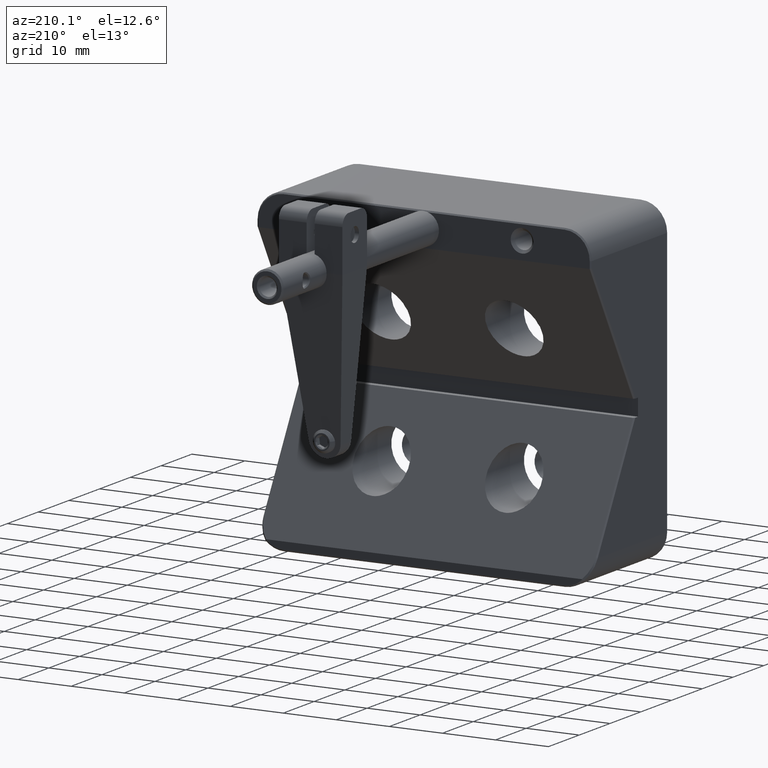
[diagram: clean part render]
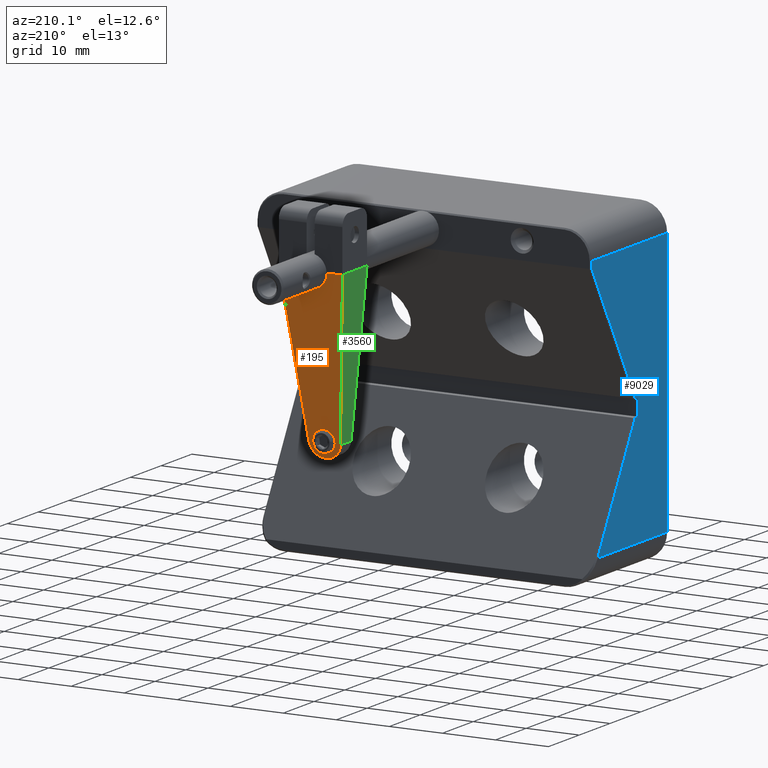
[diagram: same view with three faces highlighted in distinct colors, each labeled with its STEP entity id]
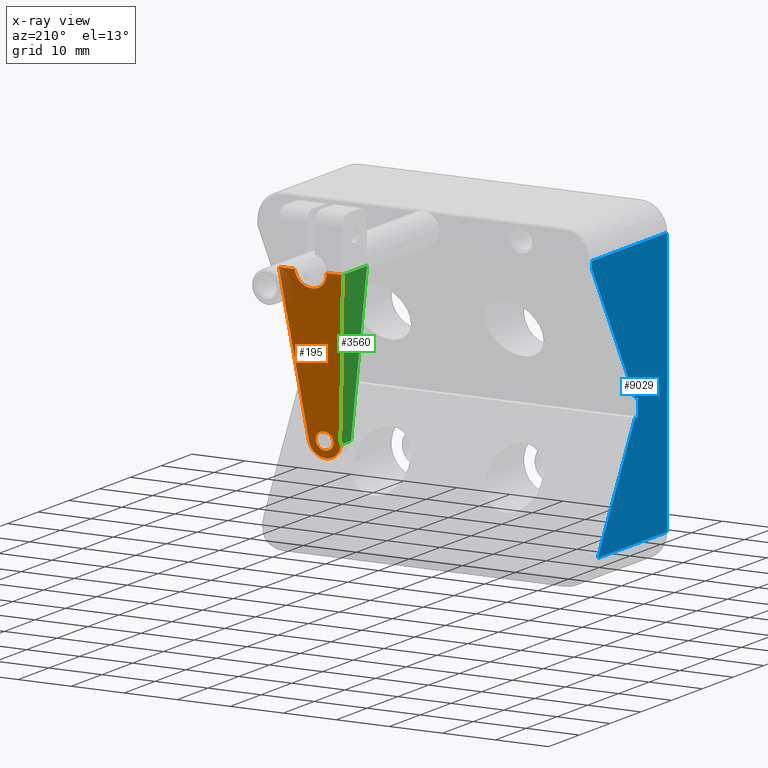
[diagram: x-ray of the same camera — body ghosted, the three highlighted faces saturated]
A machine part, auxiliary view with three faces highlighted in distinct colors.
The next image is the same camera in x-ray (body ghosted, the three faces saturated) — at least one of them is partly hidden behind the body in this view.
Their STEP definitions:

[orange] entity #195 — the highlighted planar face has unit normal (0, -0.9882, 0.153).
#61 = EDGE_CURVE ( 'NONE', #6894, #7916, #4898, .T. ) ;
#77 = VECTOR ( 'NONE', #3393, 1000.000000000000000 ) ;
#195 = ADVANCED_FACE ( 'NONE', ( #1116, #9413 ), #4980, .F. ) ;
#205 = LINE ( 'NONE', #8224, #2160 ) ;
#208 = CARTESIAN_POINT ( 'NONE',  ( 2.984557093065569155, 44.78779720589584201, -2.604004865474175201 ) ) ;
#356 = ORIENTED_EDGE ( 'NONE', *, *, #9416, .F. ) ;
#382 = CARTESIAN_POINT ( 'NONE',  ( -3.000000000000004885, 49.37046049776490264, 27.00000000000001421 ) ) ;
#540 = DIRECTION ( 'NONE',  ( 1.979147625507997711E-17, -0.9882297884318828052, 0.1529767474352757284 ) ) ;
#940 = EDGE_CURVE ( 'NONE', #8459, #6750, #7723, .T. ) ;
#1055 = EDGE_CURVE ( 'NONE', #4354, #3253, #8674, .T. ) ;
#1116 = FACE_BOUND ( 'NONE', #5462, .T. ) ;
#1137 = CARTESIAN_POINT ( 'NONE',  ( -1.649999999999991029, 45.34569269590732432, 0.9999999999999792388 ) ) ;
#1153 = ORIENTED_EDGE ( 'NONE', *, *, #940, .F. ) ;
#1267 = ORIENTED_EDGE ( 'NONE', *, *, #5946, .F. ) ;
#1363 = CARTESIAN_POINT ( 'NONE',  ( 2.999999999999998224, 48.44166792810546696, 21.00000000000001066 ) ) ;
#1563 = CARTESIAN_POINT ( 'NONE',  ( -1.649999999999994360, 44.83485678259463469, -2.299999999999995381 ) ) ;
#1615 = DIRECTION ( 'NONE',  ( 0.1001542559867145826, -0.1522075683738867702, -0.9832608916953100575 ) ) ;
#1962 = ORIENTED_EDGE ( 'NONE', *, *, #1055, .F. ) ;
#2148 = CARTESIAN_POINT ( 'NONE',  ( 2.984557093065569155, 44.78779720589584201, -2.604004865474175201 ) ) ;
#2160 = VECTOR ( 'NONE', #1615, 1000.000000000000114 ) ;
#2474 = ORIENTED_EDGE ( 'NONE', *, *, #7327, .F. ) ;
#2535 = CARTESIAN_POINT ( 'NONE',  ( 6.000000000000000000, 49.37046049776490264, 27.00000000000001421 ) ) ;
#2618 = EDGE_CURVE ( 'NONE', #7916, #6894, #3755, .T. ) ;
#2987 = CARTESIAN_POINT ( 'NONE',  ( 1.649999999999986589, 44.83485678259463469, -2.299999999999995826 ) ) ;
#3253 = VERTEX_POINT ( 'NONE', #2535 ) ;
#3359 = DIRECTION ( 'NONE',  ( -1.000000000000000000, -1.787893627723958978E-17, 1.387778780781445367E-17 ) ) ;
#3393 = DIRECTION ( 'NONE',  ( -1.000000000000000000, -1.787893627723958978E-17, 1.387778780781445367E-17 ) ) ;
#3521 = CARTESIAN_POINT ( 'NONE',  ( 3.054416292723169501, 44.89396442568767753, -1.918164625618924646 ) ) ;
#3551 =( BOUNDED_CURVE ( )  B_SPLINE_CURVE ( 3, ( #9095, #5366, #4630, #208 ),
 .UNSPECIFIED., .F., .F. ) 
 B_SPLINE_CURVE_WITH_KNOTS ( ( 4, 4 ),
 ( 4.813898172835371803, 7.752472441523800661 ),
 .UNSPECIFIED. ) 
 CURVE ( )  GEOMETRIC_REPRESENTATION_ITEM ( )  RATIONAL_B_SPLINE_CURVE ( ( 1.000000000000000000, 0.4008899701053729725, 0.4008899701053729725, 1.000000000000000000 ) ) 
 REPRESENTATION_ITEM ( '' )  );
#3692 = ORIENTED_EDGE ( 'NONE', *, *, #2618, .F. ) ;
#3755 =( BOUNDED_CURVE ( )  B_SPLINE_CURVE ( 3, ( #5292, #8918, #6047, #4468 ),
 .UNSPECIFIED., .F., .F. ) 
 B_SPLINE_CURVE_WITH_KNOTS ( ( 4, 4 ),
 ( 4.712388980384688786, 7.853981633974483678 ),
 .UNSPECIFIED. ) 
 CURVE ( )  GEOMETRIC_REPRESENTATION_ITEM ( )  RATIONAL_B_SPLINE_CURVE ( ( 1.000000000000000000, 0.3333333333333327597, 0.3333333333333327597, 1.000000000000000000 ) ) 
 REPRESENTATION_ITEM ( '' )  );
#3988 =( BOUNDED_CURVE ( )  B_SPLINE_CURVE ( 3, ( #8035, #1363, #4416, #7234 ),
 .UNSPECIFIED., .F., .T. ) 
 B_SPLINE_CURVE_WITH_KNOTS ( ( 4, 4 ),
 ( 1.570796326794896558, 4.712388980384689674 ),
 .UNSPECIFIED. ) 
 CURVE ( )  GEOMETRIC_REPRESENTATION_ITEM ( )  RATIONAL_B_SPLINE_CURVE ( ( 1.000000000000000000, 0.3333333333333333703, 0.3333333333333333703, 1.000000000000000000 ) ) 
 REPRESENTATION_ITEM ( '' )  );
#4354 = VERTEX_POINT ( 'NONE', #2148 ) ;
#4416 = CARTESIAN_POINT ( 'NONE',  ( -3.000000000000004441, 48.44166792810546696, 21.00000000000001066 ) ) ;
#4468 = CARTESIAN_POINT ( 'NONE',  ( -1.649999999999994360, 44.83485678259463469, -2.299999999999995381 ) ) ;
#4630 = CARTESIAN_POINT ( 'NONE',  ( 2.481609515183666570, 44.02345197568322277, -7.541675052647807576 ) ) ;
#4767 = AXIS2_PLACEMENT_3D ( 'NONE', #6378, #540, #5072 ) ;
#4867 = EDGE_LOOP ( 'NONE', ( #1153, #2474, #356, #1962, #1267, #9443 ) ) ;
#4898 =( BOUNDED_CURVE ( )  B_SPLINE_CURVE ( 3, ( #5528, #1137, #6291, #8535 ),
 .UNSPECIFIED., .F., .T. ) 
 B_SPLINE_CURVE_WITH_KNOTS ( ( 4, 4 ),
 ( 1.570796326794897668, 4.712388980384688786 ),
 .UNSPECIFIED. ) 
 CURVE ( )  GEOMETRIC_REPRESENTATION_ITEM ( )  RATIONAL_B_SPLINE_CURVE ( ( 1.000000000000000000, 0.3333333333333339810, 0.3333333333333339810, 1.000000000000000000 ) ) 
 REPRESENTATION_ITEM ( '' )  );
#4980 = PLANE ( 'NONE',  #4767 ) ;
#5053 = DIRECTION ( 'NONE',  ( 0.1001542559867146104, 0.1522075683738867702, 0.9832608916953100575 ) ) ;
#5072 = DIRECTION ( 'NONE',  ( 1.097938178992436709E-17, 0.1529767474352757284, 0.9882297884318828052 ) ) ;
#5292 = CARTESIAN_POINT ( 'NONE',  ( 1.649999999999986589, 44.83485678259463469, -2.299999999999995826 ) ) ;
#5366 = CARTESIAN_POINT ( 'NONE',  ( -2.481609515183676784, 44.02345197568322277, -7.541675052647805799 ) ) ;
#5462 = EDGE_LOOP ( 'NONE', ( #3692, #5666 ) ) ;
#5528 = CARTESIAN_POINT ( 'NONE',  ( -1.649999999999994360, 44.83485678259463469, -2.299999999999995381 ) ) ;
#5666 = ORIENTED_EDGE ( 'NONE', *, *, #61, .F. ) ;
#5946 = EDGE_CURVE ( 'NONE', #8778, #4354, #3551, .T. ) ;
#6047 = CARTESIAN_POINT ( 'NONE',  ( -1.649999999999997247, 44.32402086928194507, -5.599999999999981881 ) ) ;
#6291 = CARTESIAN_POINT ( 'NONE',  ( 1.649999999999983258, 45.34569269590732432, 0.9999999999999792388 ) ) ;
#6378 = CARTESIAN_POINT ( 'NONE',  ( 6.000000000000000000, 49.37046049776490264, 27.00000000000001421 ) ) ;
#6407 = CARTESIAN_POINT ( 'NONE',  ( -2.984557093065577593, 44.78779720589584201, -2.604004865474175201 ) ) ;
#6499 = CARTESIAN_POINT ( 'NONE',  ( 2.999999999999997780, 49.37046049776490264, 27.00000000000001421 ) ) ;
#6515 = CARTESIAN_POINT ( 'NONE',  ( -6.000000000000007105, 49.37046049776490264, 27.00000000000001421 ) ) ;
#6750 = VERTEX_POINT ( 'NONE', #6515 ) ;
#6894 = VERTEX_POINT ( 'NONE', #1563 ) ;
#7019 = CARTESIAN_POINT ( 'NONE',  ( 6.000000000000000000, 49.37046049776490264, 27.00000000000001421 ) ) ;
#7234 = CARTESIAN_POINT ( 'NONE',  ( -3.000000000000004885, 49.37046049776490264, 27.00000000000001421 ) ) ;
#7327 = EDGE_CURVE ( 'NONE', #9547, #8459, #3988, .T. ) ;
#7490 = VECTOR ( 'NONE', #3359, 1000.000000000000000 ) ;
#7707 = CARTESIAN_POINT ( 'NONE',  ( 6.000000000000000000, 49.37046049776490264, 27.00000000000001421 ) ) ;
#7723 = LINE ( 'NONE', #7707, #7490 ) ;
#7916 = VERTEX_POINT ( 'NONE', #2987 ) ;
#8035 = CARTESIAN_POINT ( 'NONE',  ( 2.999999999999997780, 49.37046049776490264, 27.00000000000001421 ) ) ;
#8224 = CARTESIAN_POINT ( 'NONE',  ( -3.054416292723177051, 44.89396442568767753, -1.918164625618924646 ) ) ;
#8459 = VERTEX_POINT ( 'NONE', #382 ) ;
#8535 = CARTESIAN_POINT ( 'NONE',  ( 1.649999999999986589, 44.83485678259463469, -2.299999999999995826 ) ) ;
#8674 = LINE ( 'NONE', #3521, #8793 ) ;
#8778 = VERTEX_POINT ( 'NONE', #6407 ) ;
#8793 = VECTOR ( 'NONE', #5053, 1000.000000000000114 ) ;
#8918 = CARTESIAN_POINT ( 'NONE',  ( 1.649999999999989919, 44.32402086928194507, -5.599999999999981881 ) ) ;
#8928 = LINE ( 'NONE', #7019, #77 ) ;
#9011 = EDGE_CURVE ( 'NONE', #6750, #8778, #205, .T. ) ;
#9095 = CARTESIAN_POINT ( 'NONE',  ( -2.984557093065577593, 44.78779720589584201, -2.604004865474175201 ) ) ;
#9413 = FACE_OUTER_BOUND ( 'NONE', #4867, .T. ) ;
#9416 = EDGE_CURVE ( 'NONE', #3253, #9547, #8928, .T. ) ;
#9443 = ORIENTED_EDGE ( 'NONE', *, *, #9011, .F. ) ;
#9547 = VERTEX_POINT ( 'NONE', #6499 ) ;

[blue] entity #9029 — the highlighted planar face has unit normal (1, 0, -0).
#46 = ORIENTED_EDGE ( 'NONE', *, *, #2155, .T. ) ;
#139 = CARTESIAN_POINT ( 'NONE',  ( -31.49999999999998579, 12.50000000000000000, 30.00000000000000000 ) ) ;
#243 = CARTESIAN_POINT ( 'NONE',  ( -31.49999999999998579, -12.25000000000000000, -24.99999999999999289 ) ) ;
#354 = DIRECTION ( 'NONE',  ( 0.0000000000000000000, 0.0000000000000000000, 1.000000000000000000 ) ) ;
#370 = ORIENTED_EDGE ( 'NONE', *, *, #4553, .T. ) ;
#410 = CARTESIAN_POINT ( 'NONE',  ( -31.50000000000000711, -1.587346568226842169, -0.7000000000000061728 ) ) ;
#630 = LINE ( 'NONE', #9076, #1771 ) ;
#645 = EDGE_CURVE ( 'NONE', #1862, #7703, #7976, .T. ) ;
#703 = CARTESIAN_POINT ( 'NONE',  ( -31.50000000000000711, -1.876021702821580206, -3.900000000000001243 ) ) ;
#834 = LINE ( 'NONE', #5318, #2945 ) ;
#1249 = DIRECTION ( 'NONE',  ( 0.0000000000000000000, -1.000000000000000000, 0.0000000000000000000 ) ) ;
#1596 = EDGE_CURVE ( 'NONE', #4108, #2795, #3928, .T. ) ;
#1771 = VECTOR ( 'NONE', #9045, 1000.000000000000000 ) ;
#1788 = CARTESIAN_POINT ( 'NONE',  ( -31.49999999999998579, -12.25000000000000000, 24.99999999999999645 ) ) ;
#1841 = DIRECTION ( 'NONE',  ( 0.0000000000000000000, 0.4999999999999977240, -0.8660254037844399289 ) ) ;
#1862 = VERTEX_POINT ( 'NONE', #3762 ) ;
#1900 = VECTOR ( 'NONE', #5744, 1000.000000000000000 ) ;
#1930 = FACE_OUTER_BOUND ( 'NONE', #2543, .T. ) ;
#1972 = EDGE_CURVE ( 'NONE', #5015, #7515, #630, .T. ) ;
#2155 = EDGE_CURVE ( 'NONE', #7703, #4108, #8530, .T. ) ;
#2235 = DIRECTION ( 'NONE',  ( 0.0000000000000000000, 0.0000000000000000000, -1.000000000000000000 ) ) ;
#2543 = EDGE_LOOP ( 'NONE', ( #6940, #5924, #6595, #46, #6624, #8713, #370, #3185, #7762 ) ) ;
#2699 = CARTESIAN_POINT ( 'NONE',  ( -31.49999999999998579, 12.24999999999999645, 23.76698729810780009 ) ) ;
#2704 = VECTOR ( 'NONE', #354, 1000.000000000000000 ) ;
#2795 = VERTEX_POINT ( 'NONE', #5451 ) ;
#2945 = VECTOR ( 'NONE', #8317, 1000.000000000000114 ) ;
#3067 = DIRECTION ( 'NONE',  ( 1.000000000000000000, 0.0000000000000000000, -0.0000000000000000000 ) ) ;
#3164 = VECTOR ( 'NONE', #5488, 1000.000000000000000 ) ;
#3185 = ORIENTED_EDGE ( 'NONE', *, *, #7793, .T. ) ;
#3469 = LINE ( 'NONE', #6304, #7972 ) ;
#3747 = CARTESIAN_POINT ( 'NONE',  ( -31.49999999999998579, 12.24999999999999645, 30.00000000000000000 ) ) ;
#3748 = VECTOR ( 'NONE', #2235, 1000.000000000000000 ) ;
#3762 = CARTESIAN_POINT ( 'NONE',  ( -31.49999999999998579, 10.30606897707944647, -24.99999999999999289 ) ) ;
#3928 = LINE ( 'NONE', #9519, #1900 ) ;
#4108 = VERTEX_POINT ( 'NONE', #1788 ) ;
#4452 = DIRECTION ( 'NONE',  ( -0.0000000000000000000, 1.000000000000000000, 2.168404344971009657E-15 ) ) ;
#4553 = EDGE_CURVE ( 'NONE', #9559, #7048, #834, .T. ) ;
#4796 = AXIS2_PLACEMENT_3D ( 'NONE', #139, #3067, #6780 ) ;
#5015 = VERTEX_POINT ( 'NONE', #6761 ) ;
#5318 = CARTESIAN_POINT ( 'NONE',  ( -31.49999999999998579, 15.01147367097485308, 28.55000000000001847 ) ) ;
#5451 = CARTESIAN_POINT ( 'NONE',  ( -31.49999999999998579, 12.24999999999999645, 24.99999999999999645 ) ) ;
#5488 = DIRECTION ( 'NONE',  ( 0.0000000000000000000, -1.000000000000000000, 2.258754526011468623E-15 ) ) ;
#5499 = CARTESIAN_POINT ( 'NONE',  ( -31.49999999999998579, -12.25000000000000000, 30.00000000000000000 ) ) ;
#5671 = EDGE_CURVE ( 'NONE', #2795, #9559, #8602, .T. ) ;
#5744 = DIRECTION ( 'NONE',  ( -0.0000000000000000000, 1.000000000000000000, -0.0000000000000000000 ) ) ;
#5899 = VECTOR ( 'NONE', #1249, 1000.000000000000000 ) ;
#5924 = ORIENTED_EDGE ( 'NONE', *, *, #9371, .T. ) ;
#5932 = CARTESIAN_POINT ( 'NONE',  ( -31.50000000000000711, -1.587346568226842169, -3.900000000000000799 ) ) ;
#6178 = LINE ( 'NONE', #410, #3164 ) ;
#6304 = CARTESIAN_POINT ( 'NONE',  ( -31.49999999999998579, -12.96114687126240916, 15.30000000000013749 ) ) ;
#6595 = ORIENTED_EDGE ( 'NONE', *, *, #645, .T. ) ;
#6624 = ORIENTED_EDGE ( 'NONE', *, *, #1596, .T. ) ;
#6761 = CARTESIAN_POINT ( 'NONE',  ( -31.50000000000000711, -2.787346568226841459, -0.7000000000000035083 ) ) ;
#6780 = DIRECTION ( 'NONE',  ( -0.0000000000000000000, 0.0000000000000000000, -1.000000000000000000 ) ) ;
#6940 = ORIENTED_EDGE ( 'NONE', *, *, #8178, .T. ) ;
#7048 = VERTEX_POINT ( 'NONE', #8539 ) ;
#7281 = VERTEX_POINT ( 'NONE', #703 ) ;
#7515 = VERTEX_POINT ( 'NONE', #8230 ) ;
#7545 = PLANE ( 'NONE',  #4796 ) ;
#7655 = VECTOR ( 'NONE', #4452, 1000.000000000000000 ) ;
#7703 = VERTEX_POINT ( 'NONE', #243 ) ;
#7762 = ORIENTED_EDGE ( 'NONE', *, *, #1972, .T. ) ;
#7793 = EDGE_CURVE ( 'NONE', #7048, #5015, #6178, .T. ) ;
#7972 = VECTOR ( 'NONE', #1841, 1000.000000000000114 ) ;
#7976 = LINE ( 'NONE', #9404, #5899 ) ;
#8178 = EDGE_CURVE ( 'NONE', #7515, #7281, #8856, .T. ) ;
#8230 = CARTESIAN_POINT ( 'NONE',  ( -31.50000000000000711, -2.787346568226841459, -3.900000000000003464 ) ) ;
#8317 = DIRECTION ( 'NONE',  ( 0.0000000000000000000, -0.4999999999999977240, -0.8660254037844399289 ) ) ;
#8530 = LINE ( 'NONE', #5499, #2704 ) ;
#8539 = CARTESIAN_POINT ( 'NONE',  ( -31.50000000000000711, -1.876021702821614179, -0.7000000000000055067 ) ) ;
#8602 = LINE ( 'NONE', #3747, #3748 ) ;
#8713 = ORIENTED_EDGE ( 'NONE', *, *, #5671, .T. ) ;
#8856 = LINE ( 'NONE', #5932, #7655 ) ;
#9029 = ADVANCED_FACE ( 'NONE', ( #1930 ), #7545, .F. ) ;
#9045 = DIRECTION ( 'NONE',  ( 0.0000000000000000000, 0.0000000000000000000, -1.000000000000000000 ) ) ;
#9076 = CARTESIAN_POINT ( 'NONE',  ( -31.50000000000000711, -2.787346568226841459, -0.7000000000000035083 ) ) ;
#9371 = EDGE_CURVE ( 'NONE', #7281, #1862, #3469, .T. ) ;
#9404 = CARTESIAN_POINT ( 'NONE',  ( -31.49999999999998579, 12.50000000000000000, -24.99999999999999289 ) ) ;
#9519 = CARTESIAN_POINT ( 'NONE',  ( -31.49999999999998579, 12.50000000000000000, 24.99999999999999645 ) ) ;
#9559 = VERTEX_POINT ( 'NONE', #2699 ) ;

[green] entity #3560 — the highlighted planar face has unit normal (0.9949, -0, 0.1013).
#205 = LINE ( 'NONE', #8224, #2160 ) ;
#222 = ORIENTED_EDGE ( 'NONE', *, *, #849, .T. ) ;
#377 = VECTOR ( 'NONE', #1457, 1000.000000000000000 ) ;
#793 = CARTESIAN_POINT ( 'NONE',  ( -6.000000000000007105, 49.37046049776490264, 27.00000000000001421 ) ) ;
#838 = ORIENTED_EDGE ( 'NONE', *, *, #9011, .T. ) ;
#849 = EDGE_CURVE ( 'NONE', #6032, #5906, #4950, .T. ) ;
#1098 = AXIS2_PLACEMENT_3D ( 'NONE', #4475, #7427, #6721 ) ;
#1202 = FACE_OUTER_BOUND ( 'NONE', #5471, .T. ) ;
#1457 = DIRECTION ( 'NONE',  ( 1.787893627723958978E-17, -1.000000000000000000, -2.460847057598100059E-16 ) ) ;
#1564 = ORIENTED_EDGE ( 'NONE', *, *, #8816, .T. ) ;
#1615 = DIRECTION ( 'NONE',  ( 0.1001542559867145826, -0.1522075683738867702, -0.9832608916953100575 ) ) ;
#2160 = VECTOR ( 'NONE', #1615, 1000.000000000000114 ) ;
#2485 = ORIENTED_EDGE ( 'NONE', *, *, #4965, .F. ) ;
#2697 = CARTESIAN_POINT ( 'NONE',  ( -2.984557093065577593, 49.37046049776490975, -2.604004865474171648 ) ) ;
#2725 = CARTESIAN_POINT ( 'NONE',  ( -2.984557093065577593, 41.37046049776490975, -2.604004865474175201 ) ) ;
#2881 = VECTOR ( 'NONE', #5058, 1000.000000000000000 ) ;
#3528 = CARTESIAN_POINT ( 'NONE',  ( -2.984557093065577593, 41.37046049776490975, -2.604004865474175201 ) ) ;
#3560 = ADVANCED_FACE ( 'NONE', ( #1202 ), #8165, .F. ) ;
#4475 = CARTESIAN_POINT ( 'NONE',  ( -2.984557093065577593, 49.37046049776490975, -2.604004865474171648 ) ) ;
#4950 = LINE ( 'NONE', #3528, #2881 ) ;
#4965 = EDGE_CURVE ( 'NONE', #6750, #5906, #5122, .T. ) ;
#5058 = DIRECTION ( 'NONE',  ( -0.1013349551580597085, -2.466297125627261552E-16, 0.9948523643551911988 ) ) ;
#5122 = LINE ( 'NONE', #793, #377 ) ;
#5471 = EDGE_LOOP ( 'NONE', ( #2485, #838, #1564, #222 ) ) ;
#5906 = VERTEX_POINT ( 'NONE', #7053 ) ;
#6032 = VERTEX_POINT ( 'NONE', #2725 ) ;
#6374 = LINE ( 'NONE', #2697, #9185 ) ;
#6407 = CARTESIAN_POINT ( 'NONE',  ( -2.984557093065577593, 44.78779720589584201, -2.604004865474175201 ) ) ;
#6515 = CARTESIAN_POINT ( 'NONE',  ( -6.000000000000007105, 49.37046049776490264, 27.00000000000001421 ) ) ;
#6721 = DIRECTION ( 'NONE',  ( 0.1013349551580597224, 2.466297125627261059E-16, -0.9948523643551911988 ) ) ;
#6750 = VERTEX_POINT ( 'NONE', #6515 ) ;
#7053 = CARTESIAN_POINT ( 'NONE',  ( -6.000000000000007105, 41.37046049776490264, 27.00000000000001066 ) ) ;
#7155 = DIRECTION ( 'NONE',  ( 1.787893627723958978E-17, -1.000000000000000000, -2.460847057598100059E-16 ) ) ;
#7427 = DIRECTION ( 'NONE',  ( 0.9948523643551911988, -7.150080595687038692E-18, 0.1013349551580597224 ) ) ;
#8165 = PLANE ( 'NONE',  #1098 ) ;
#8224 = CARTESIAN_POINT ( 'NONE',  ( -3.054416292723177051, 44.89396442568767753, -1.918164625618924646 ) ) ;
#8778 = VERTEX_POINT ( 'NONE', #6407 ) ;
#8816 = EDGE_CURVE ( 'NONE', #8778, #6032, #6374, .T. ) ;
#9011 = EDGE_CURVE ( 'NONE', #6750, #8778, #205, .T. ) ;
#9185 = VECTOR ( 'NONE', #7155, 1000.000000000000000 ) ;